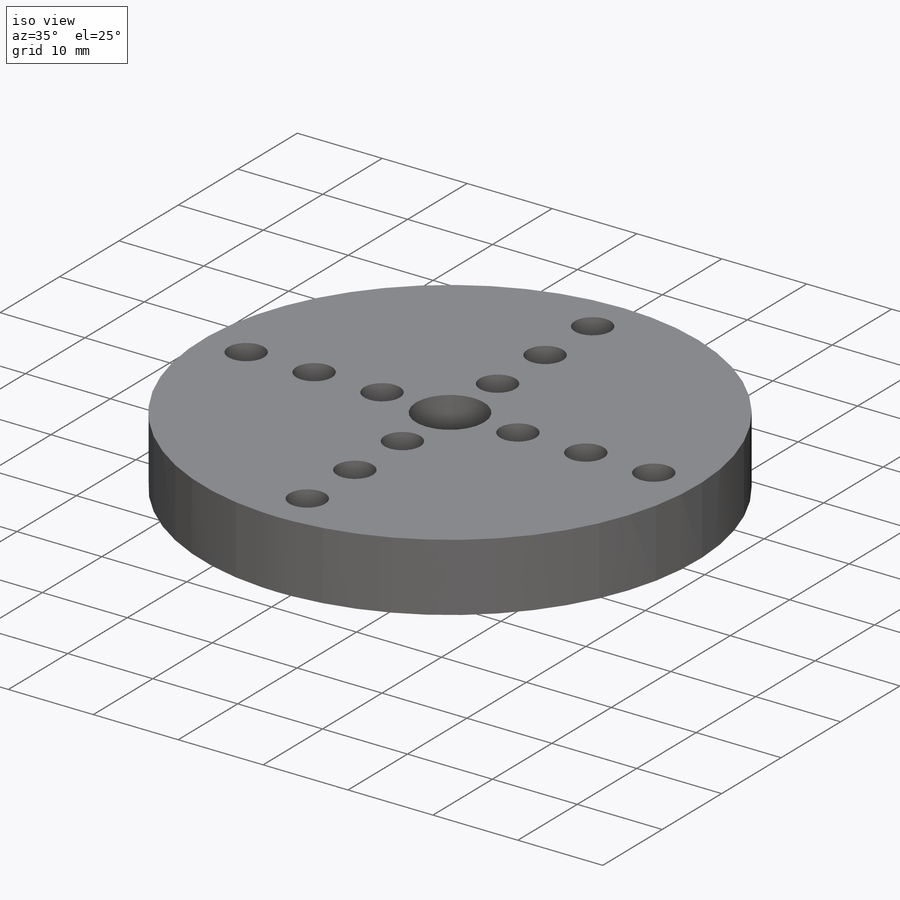
[diagram: iso view]
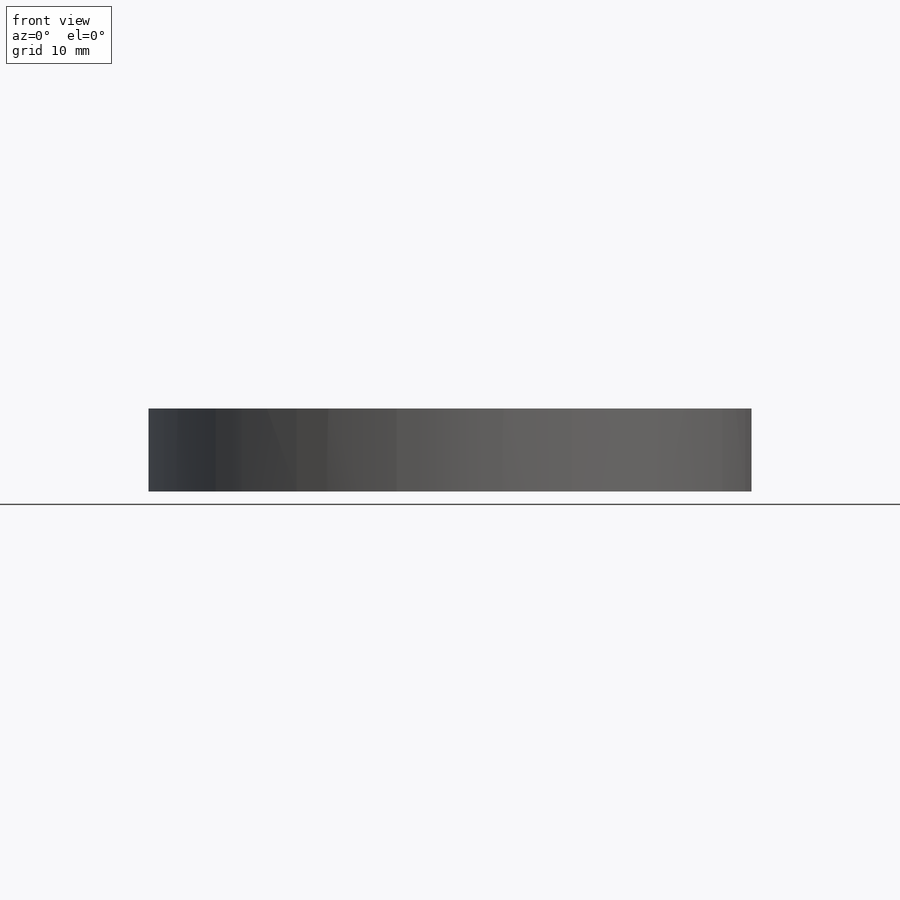
[diagram: front view]
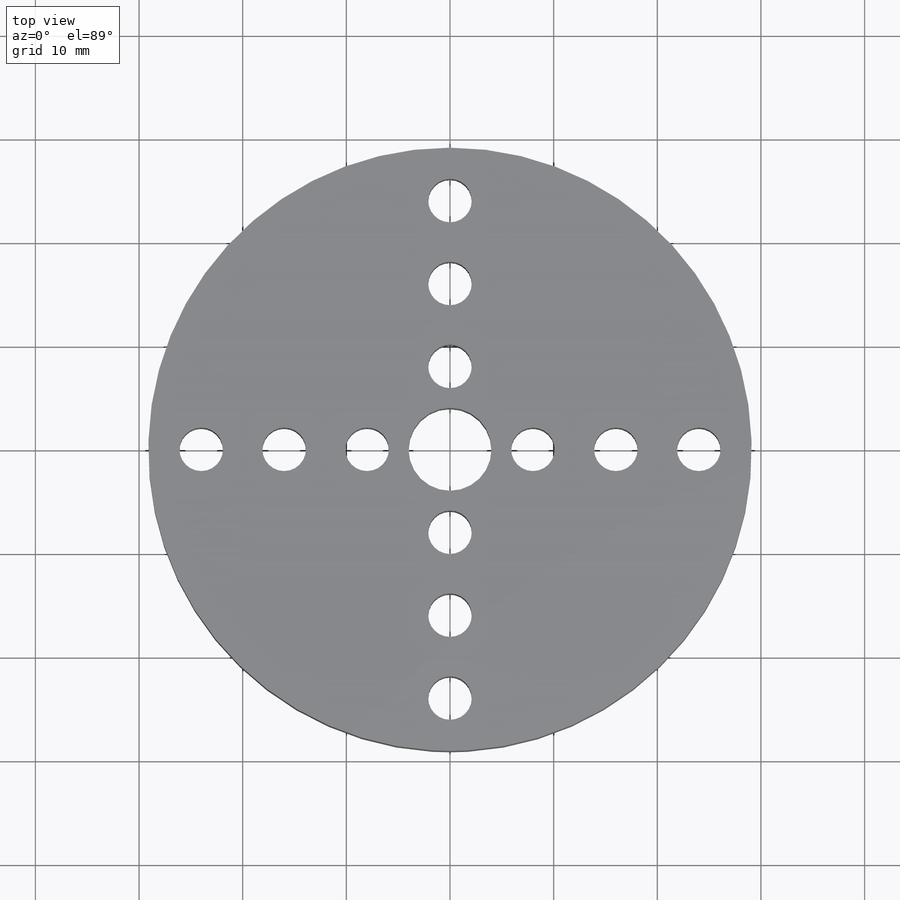
[diagram: top view]
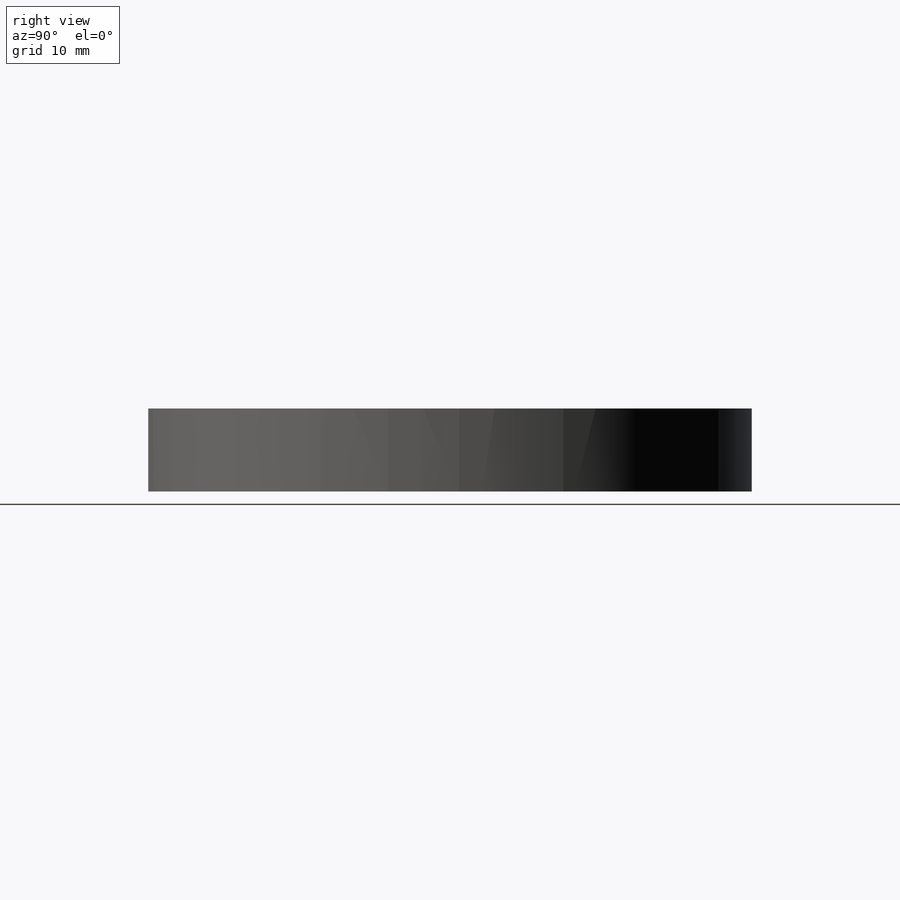
[diagram: right view]
SOLIDWORKS PART (.sldprt)
format: sldprt  version: not decoded by parser v0  size: 156,672 bytes
history: native  units: mm
features: sketch x3, cut_extrude x2, material x1, extrude x1 (+12 scaffold rows collapsed)
feature tree (19):
  scaffold x12  (default folders/planes/origin — collapsed)
  material  "재질 <지정안함>"
  sketch  "스케치1"  dims[D1=~32.631479mm]
  extrude  "보스-돌출1"  Depth=8mm
  sketch  "스케치2"  dims[D1=2.0mm]
  cut_extrude  "컷-돌출1"  Depth=8mm
  sketch  "스케치3"  dims[D1=~1.525208mm]
  cut_extrude  "컷-돌출2"  Depth=8mm
decode coverage: 6 of 6 modeling features carry decoded parameters
note: ~ marks probable driven/reference dimensions
note: suppression state not decoded; provenance and decode notes live in map.json
